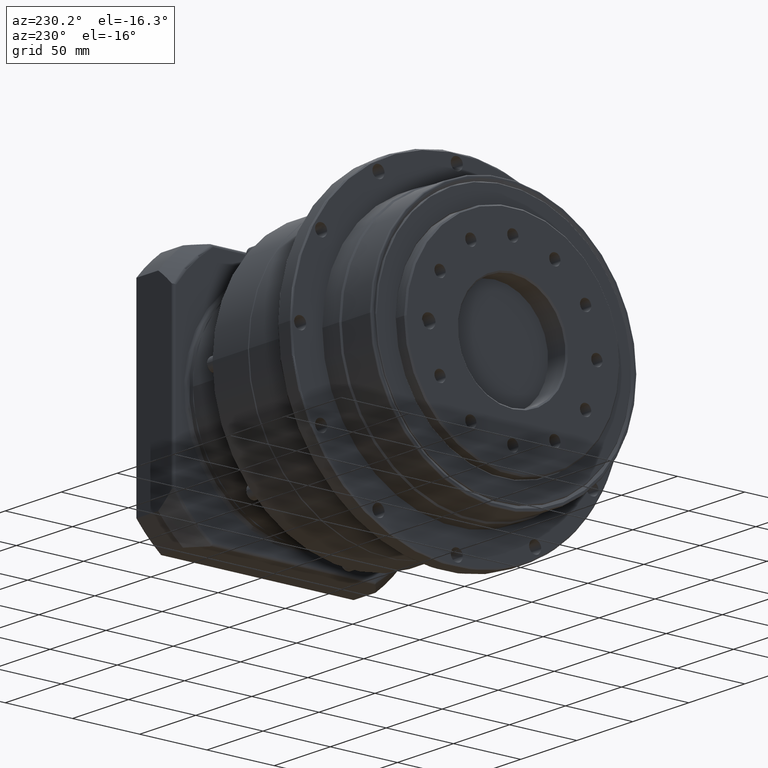
[diagram: clean part render]
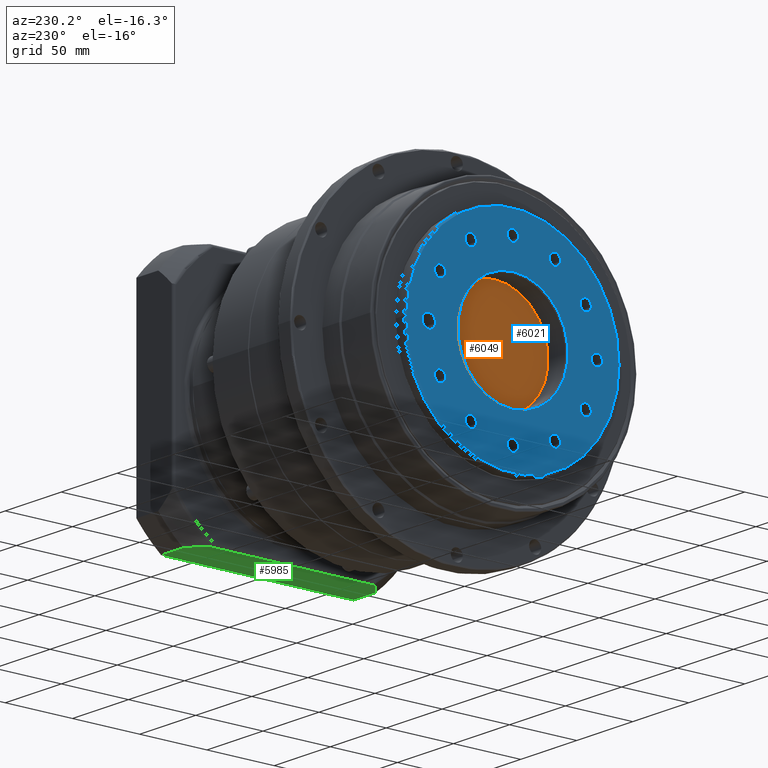
[diagram: same view with three faces highlighted in distinct colors, each labeled with its STEP entity id]
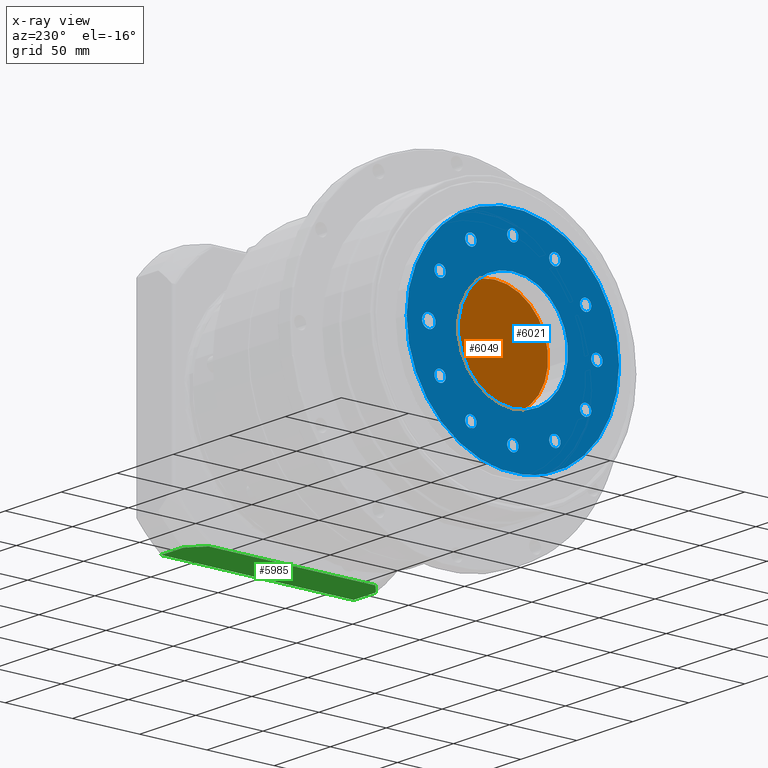
[diagram: x-ray of the same camera — body ghosted, the three highlighted faces saturated]
A machine part, auxiliary view with three faces highlighted in distinct colors.
The next image is the same camera in x-ray (body ghosted, the three faces saturated) — at least one of them is partly hidden behind the body in this view.
Their STEP definitions:

[orange] entity #6049 — the highlighted planar face has unit normal (1, -0, -0).
#1682=FACE_OUTER_BOUND('',#2240,.T.);
#2240=EDGE_LOOP('',(#4930));
#2782=CIRCLE('',#6617,40.);
#3246=VERTEX_POINT('',#9953);
#3880=EDGE_CURVE('',#3246,#3246,#2782,.T.);
#4930=ORIENTED_EDGE('',*,*,#3880,.F.);
#5754=PLANE('',#6654);
#6049=ADVANCED_FACE('',(#1682),#5754,.F.);
#6617=AXIS2_PLACEMENT_3D('',#9954,#7828,#7829);
#6654=AXIS2_PLACEMENT_3D('',#10003,#7902,#7903);
#7828=DIRECTION('center_axis',(1.,-7.70044812467336E-30,-3.24229097250222E-15));
#7829=DIRECTION('ref_axis',(-3.24229097250222E-15,4.46320813919692E-17,
-1.));
#7902=DIRECTION('center_axis',(1.,-7.70044812467336E-30,-3.24229097250222E-15));
#7903=DIRECTION('ref_axis',(-2.8421709430404E-15,0.,-1.));
#9953=CARTESIAN_POINT('',(-95.3353955275979,15.6718015691406,85.4710620589157));
#9954=CARTESIAN_POINT('Origin',(-95.3353955275981,15.6718015691406,45.4710620589157));
#10003=CARTESIAN_POINT('Origin',(-95.3353955275981,15.6718015691406,45.4710620589157));

[blue] entity #6021 — the highlighted planar face has unit normal (-1, 0, 0).
#1294=FACE_BOUND('',#2185,.T.);
#1295=FACE_BOUND('',#2186,.T.);
#1296=FACE_BOUND('',#2187,.T.);
#1297=FACE_BOUND('',#2188,.T.);
#1298=FACE_BOUND('',#2189,.T.);
#1299=FACE_BOUND('',#2190,.T.);
#1300=FACE_BOUND('',#2191,.T.);
#1301=FACE_BOUND('',#2192,.T.);
#1302=FACE_BOUND('',#2193,.T.);
#1303=FACE_BOUND('',#2194,.T.);
#1304=FACE_BOUND('',#2195,.T.);
#1305=FACE_BOUND('',#2196,.T.);
#1306=FACE_BOUND('',#2197,.T.);
#1654=FACE_OUTER_BOUND('',#2184,.T.);
#2184=EDGE_LOOP('',(#4874));
#2185=EDGE_LOOP('',(#4875));
#2186=EDGE_LOOP('',(#4876));
#2187=EDGE_LOOP('',(#4877));
#2188=EDGE_LOOP('',(#4878));
#2189=EDGE_LOOP('',(#4879));
#2190=EDGE_LOOP('',(#4880));
#2191=EDGE_LOOP('',(#4881));
#2192=EDGE_LOOP('',(#4882));
#2193=EDGE_LOOP('',(#4883));
#2194=EDGE_LOOP('',(#4884));
#2195=EDGE_LOOP('',(#4885));
#2196=EDGE_LOOP('',(#4886));
#2197=EDGE_LOOP('',(#4887));
#2766=CIRCLE('',#6597,79.);
#2768=CIRCLE('',#6600,41.);
#2769=CIRCLE('',#6601,4.188);
#2770=CIRCLE('',#6602,4.188);
#2771=CIRCLE('',#6603,4.188);
#2772=CIRCLE('',#6604,4.188);
#2773=CIRCLE('',#6605,4.188);
#2774=CIRCLE('',#6606,4.188);
#2775=CIRCLE('',#6607,4.188);
#2776=CIRCLE('',#6608,4.188);
#2777=CIRCLE('',#6609,4.188);
#2778=CIRCLE('',#6610,4.188);
#2779=CIRCLE('',#6611,4.188);
#2780=CIRCLE('',#6612,5.);
#3230=VERTEX_POINT('',#9917);
#3232=VERTEX_POINT('',#9922);
#3233=VERTEX_POINT('',#9924);
#3234=VERTEX_POINT('',#9926);
#3235=VERTEX_POINT('',#9928);
#3236=VERTEX_POINT('',#9930);
#3237=VERTEX_POINT('',#9932);
#3238=VERTEX_POINT('',#9934);
#3239=VERTEX_POINT('',#9936);
#3240=VERTEX_POINT('',#9938);
#3241=VERTEX_POINT('',#9940);
#3242=VERTEX_POINT('',#9942);
#3243=VERTEX_POINT('',#9944);
#3244=VERTEX_POINT('',#9946);
#3864=EDGE_CURVE('',#3230,#3230,#2766,.T.);
#3866=EDGE_CURVE('',#3232,#3232,#2768,.T.);
#3867=EDGE_CURVE('',#3233,#3233,#2769,.T.);
#3868=EDGE_CURVE('',#3234,#3234,#2770,.T.);
#3869=EDGE_CURVE('',#3235,#3235,#2771,.T.);
#3870=EDGE_CURVE('',#3236,#3236,#2772,.T.);
#3871=EDGE_CURVE('',#3237,#3237,#2773,.T.);
#3872=EDGE_CURVE('',#3238,#3238,#2774,.T.);
#3873=EDGE_CURVE('',#3239,#3239,#2775,.T.);
#3874=EDGE_CURVE('',#3240,#3240,#2776,.T.);
#3875=EDGE_CURVE('',#3241,#3241,#2777,.T.);
#3876=EDGE_CURVE('',#3242,#3242,#2778,.T.);
#3877=EDGE_CURVE('',#3243,#3243,#2779,.T.);
#3878=EDGE_CURVE('',#3244,#3244,#2780,.T.);
#4874=ORIENTED_EDGE('',*,*,#3864,.F.);
#4875=ORIENTED_EDGE('',*,*,#3866,.F.);
#4876=ORIENTED_EDGE('',*,*,#3867,.T.);
#4877=ORIENTED_EDGE('',*,*,#3868,.T.);
#4878=ORIENTED_EDGE('',*,*,#3869,.T.);
#4879=ORIENTED_EDGE('',*,*,#3870,.T.);
#4880=ORIENTED_EDGE('',*,*,#3871,.T.);
#4881=ORIENTED_EDGE('',*,*,#3872,.T.);
#4882=ORIENTED_EDGE('',*,*,#3873,.T.);
#4883=ORIENTED_EDGE('',*,*,#3874,.T.);
#4884=ORIENTED_EDGE('',*,*,#3875,.T.);
#4885=ORIENTED_EDGE('',*,*,#3876,.T.);
#4886=ORIENTED_EDGE('',*,*,#3877,.T.);
#4887=ORIENTED_EDGE('',*,*,#3878,.T.);
#5753=PLANE('',#6599);
#6021=ADVANCED_FACE('',(#1654,#1294,#1295,#1296,#1297,#1298,#1299,#1300,
#1301,#1302,#1303,#1304,#1305,#1306),#5753,.T.);
#6597=AXIS2_PLACEMENT_3D('',#9918,#7788,#7789);
#6599=AXIS2_PLACEMENT_3D('',#9921,#7792,#7793);
#6600=AXIS2_PLACEMENT_3D('',#9923,#7794,#7795);
#6601=AXIS2_PLACEMENT_3D('',#9925,#7796,#7797);
#6602=AXIS2_PLACEMENT_3D('',#9927,#7798,#7799);
#6603=AXIS2_PLACEMENT_3D('',#9929,#7800,#7801);
#6604=AXIS2_PLACEMENT_3D('',#9931,#7802,#7803);
#6605=AXIS2_PLACEMENT_3D('',#9933,#7804,#7805);
#6606=AXIS2_PLACEMENT_3D('',#9935,#7806,#7807);
#6607=AXIS2_PLACEMENT_3D('',#9937,#7808,#7809);
#6608=AXIS2_PLACEMENT_3D('',#9939,#7810,#7811);
#6609=AXIS2_PLACEMENT_3D('',#9941,#7812,#7813);
#6610=AXIS2_PLACEMENT_3D('',#9943,#7814,#7815);
#6611=AXIS2_PLACEMENT_3D('',#9945,#7816,#7817);
#6612=AXIS2_PLACEMENT_3D('',#9947,#7818,#7819);
#7788=DIRECTION('center_axis',(1.,-7.70044812467336E-30,-3.24229097250222E-15));
#7789=DIRECTION('ref_axis',(-7.84515831925452E-30,-1.,-4.46320813919692E-17));
#7792=DIRECTION('center_axis',(-1.,7.70044812467336E-30,3.24229097250222E-15));
#7793=DIRECTION('ref_axis',(2.8421709430404E-15,0.,1.));
#7794=DIRECTION('center_axis',(-1.,7.70044812467336E-30,3.24229097250222E-15));
#7795=DIRECTION('ref_axis',(-3.24229097250222E-15,4.46320813919692E-17,
-1.));
#7796=DIRECTION('center_axis',(1.,-7.70044812467336E-30,-3.24229097250222E-15));
#7797=DIRECTION('ref_axis',(3.24229097250222E-15,-4.46320813919692E-17,
1.));
#7798=DIRECTION('center_axis',(1.,-7.70044812467336E-30,-3.24229097250222E-15));
#7799=DIRECTION('ref_axis',(3.24229097250222E-15,-4.46320813919692E-17,
1.));
#7800=DIRECTION('center_axis',(1.,-7.70044812467336E-30,-3.24229097250222E-15));
#7801=DIRECTION('ref_axis',(3.24229097250222E-15,-4.46320813919692E-17,
1.));
#7802=DIRECTION('center_axis',(1.,-7.70044812467336E-30,-3.24229097250222E-15));
#7803=DIRECTION('ref_axis',(3.24229097250222E-15,-4.46320813919692E-17,
1.));
#7804=DIRECTION('center_axis',(1.,-7.70044812467336E-30,-3.24229097250222E-15));
#7805=DIRECTION('ref_axis',(3.24229097250222E-15,-4.46320813919692E-17,
1.));
#7806=DIRECTION('center_axis',(1.,-7.70044812467336E-30,-3.24229097250222E-15));
#7807=DIRECTION('ref_axis',(3.24229097250222E-15,-4.46320813919692E-17,
1.));
#7808=DIRECTION('center_axis',(1.,-7.70044812467336E-30,-3.24229097250222E-15));
#7809=DIRECTION('ref_axis',(3.24229097250222E-15,-4.46320813919692E-17,
1.));
#7810=DIRECTION('center_axis',(1.,-7.70044812467336E-30,-3.24229097250222E-15));
#7811=DIRECTION('ref_axis',(3.24229097250222E-15,-4.46320813919692E-17,
1.));
#7812=DIRECTION('center_axis',(1.,-7.70044812467336E-30,-3.24229097250222E-15));
#7813=DIRECTION('ref_axis',(3.24229097250222E-15,-4.46320813919692E-17,
1.));
#7814=DIRECTION('center_axis',(1.,-7.70044812467336E-30,-3.24229097250222E-15));
#7815=DIRECTION('ref_axis',(3.24229097250222E-15,-4.46320813919692E-17,
1.));
#7816=DIRECTION('center_axis',(1.,-7.70044812467336E-30,-3.24229097250222E-15));
#7817=DIRECTION('ref_axis',(3.24229097250222E-15,-4.46320813919692E-17,
1.));
#7818=DIRECTION('center_axis',(1.,-7.70044812467336E-30,-3.24229097250222E-15));
#7819=DIRECTION('ref_axis',(3.24229097250222E-15,-4.46320813919692E-17,
1.));
#9917=CARTESIAN_POINT('',(-111.835395527598,94.6718015691406,45.4710620589158));
#9918=CARTESIAN_POINT('Origin',(-111.835395527598,15.6718015691406,45.4710620589157));
#9921=CARTESIAN_POINT('Origin',(-111.835395527598,95.6718015691406,45.4710620589157));
#9922=CARTESIAN_POINT('',(-111.835395527598,15.6718015691406,86.4710620589157));
#9923=CARTESIAN_POINT('Origin',(-111.835395527598,15.6718015691406,45.4710620589157));
#9924=CARTESIAN_POINT('',(-111.835395527598,46.9218015691406,103.785649795443));
#9925=CARTESIAN_POINT('Origin',(-111.835395527598,46.9218015691406,99.5976497954431));
#9926=CARTESIAN_POINT('',(-111.835395527598,-15.5781984308593,103.785649795443));
#9927=CARTESIAN_POINT('Origin',(-111.835395527598,-15.5781984308593,99.5976497954432));
#9928=CARTESIAN_POINT('',(-111.835395527598,-46.8281984308594,49.6590620589157));
#9929=CARTESIAN_POINT('Origin',(-111.835395527598,-46.8281984308594,45.4710620589157));
#9930=CARTESIAN_POINT('',(-111.835395527598,-15.5781984308594,-4.46752567761165));
#9931=CARTESIAN_POINT('Origin',(-111.835395527598,-15.5781984308594,-8.65552567761165));
#9932=CARTESIAN_POINT('',(-111.835395527598,46.9218015691406,-4.46752567761167));
#9933=CARTESIAN_POINT('Origin',(-111.835395527598,46.9218015691406,-8.65552567761167));
#9934=CARTESIAN_POINT('',(-111.835395527598,69.798389305668,18.4090620589157));
#9935=CARTESIAN_POINT('Origin',(-111.835395527598,69.798389305668,14.2210620589157));
#9936=CARTESIAN_POINT('',(-111.835395527598,15.6718015691406,-12.8409379410842));
#9937=CARTESIAN_POINT('Origin',(-111.835395527598,15.6718015691406,-17.0289379410842));
#9938=CARTESIAN_POINT('',(-111.835395527598,-38.4547861673868,18.4090620589158));
#9939=CARTESIAN_POINT('Origin',(-111.835395527598,-38.4547861673868,14.2210620589158));
#9940=CARTESIAN_POINT('',(-111.835395527598,-38.4547861673868,80.9090620589158));
#9941=CARTESIAN_POINT('Origin',(-111.835395527598,-38.4547861673868,76.7210620589158));
#9942=CARTESIAN_POINT('',(-111.835395527598,15.6718015691406,112.159062058916));
#9943=CARTESIAN_POINT('Origin',(-111.835395527598,15.6718015691406,107.971062058916));
#9944=CARTESIAN_POINT('',(-111.835395527598,69.7983893056681,80.9090620589157));
#9945=CARTESIAN_POINT('Origin',(-111.835395527598,69.7983893056681,76.7210620589157));
#9946=CARTESIAN_POINT('',(-111.835395527598,78.1718015691406,50.4710620589157));
#9947=CARTESIAN_POINT('Origin',(-111.835395527598,78.1718015691406,45.4710620589157));

[green] entity #5985 — the highlighted planar face has unit normal (-0, -0, -1).
#285=LINE('',#9537,#528);
#300=LINE('',#9753,#543);
#302=LINE('',#9796,#545);
#303=LINE('',#9799,#546);
#528=VECTOR('',#7578,143.178210632764);
#543=VECTOR('',#7651,123.401782807219);
#545=VECTOR('',#7669,19.4878626474241);
#546=VECTOR('',#7672,19.4878626474241);
#1618=FACE_OUTER_BOUND('',#2121,.T.);
#2121=EDGE_LOOP('',(#4778,#4779,#4780,#4781,#4782,#4783));
#2741=CIRCLE('',#6536,88.1816307401944);
#2743=CIRCLE('',#6539,88.1816307401944);
#3173=VERTEX_POINT('',#9525);
#3174=VERTEX_POINT('',#9532);
#3203=VERTEX_POINT('',#9751);
#3204=VERTEX_POINT('',#9752);
#3207=VERTEX_POINT('',#9792);
#3208=VERTEX_POINT('',#9797);
#3783=EDGE_CURVE('',#3174,#3173,#285,.T.);
#3828=EDGE_CURVE('',#3203,#3204,#300,.T.);
#3835=EDGE_CURVE('',#3207,#3204,#2741,.T.);
#3837=EDGE_CURVE('',#3174,#3207,#302,.T.);
#3838=EDGE_CURVE('',#3203,#3208,#2743,.T.);
#3839=EDGE_CURVE('',#3208,#3173,#303,.T.);
#4778=ORIENTED_EDGE('',*,*,#3783,.F.);
#4779=ORIENTED_EDGE('',*,*,#3837,.T.);
#4780=ORIENTED_EDGE('',*,*,#3835,.T.);
#4781=ORIENTED_EDGE('',*,*,#3828,.F.);
#4782=ORIENTED_EDGE('',*,*,#3838,.T.);
#4783=ORIENTED_EDGE('',*,*,#3839,.T.);
#5742=PLANE('',#6538);
#5985=ADVANCED_FACE('',(#1618),#5742,.T.);
#6536=AXIS2_PLACEMENT_3D('',#9793,#7663,#7664);
#6538=AXIS2_PLACEMENT_3D('',#9795,#7667,#7668);
#6539=AXIS2_PLACEMENT_3D('',#9798,#7670,#7671);
#7578=DIRECTION('',(2.2105299668796E-16,1.,-2.77555756156287E-15));
#7651=DIRECTION('',(-2.2105299668796E-16,-1.,2.77555756156287E-15));
#7663=DIRECTION('center_axis',(-1.32434103674276E-15,-2.77555756156287E-15,
-1.));
#7664=DIRECTION('ref_axis',(-2.2105299668796E-16,-1.,2.77555756156287E-15));
#7667=DIRECTION('center_axis',(-1.32434103674276E-15,-2.77555756156287E-15,
-1.));
#7668=DIRECTION('ref_axis',(0.,-1.,2.8421709430404E-15));
#7669=DIRECTION('',(-1.,2.21052996687963E-16,1.32434103674276E-15));
#7670=DIRECTION('center_axis',(-1.32434103674276E-15,-2.77555756156287E-15,
-1.));
#7671=DIRECTION('ref_axis',(-2.2105299668796E-16,-1.,2.77555756156287E-15));
#7672=DIRECTION('',(1.,-2.21052996687963E-16,-1.32434103674276E-15));
#9525=CARTESIAN_POINT('',(116.164604472402,87.2609068855217,-44.5289379410849));
#9532=CARTESIAN_POINT('',(116.164604472402,-55.9173037472418,-44.5289379410845));
#9537=CARTESIAN_POINT('',(116.164604472402,60.67180156914,-44.5289379410848));
#9751=CARTESIAN_POINT('',(85.1646044724019,77.3726929727494,-44.5289379410848));
#9752=CARTESIAN_POINT('',(85.1646044724019,-46.0290898344695,-44.5289379410845));
#9753=CARTESIAN_POINT('',(85.1646044724019,60.67180156914,-44.5289379410848));
#9792=CARTESIAN_POINT('',(96.6767418249779,-55.9173037472418,-44.5289379410844));
#9793=CARTESIAN_POINT('Origin',(148.164604472402,15.6718015691399,-44.5289379410847));
#9795=CARTESIAN_POINT('Origin',(118.164604472402,105.67180156914,-44.5289379410849));
#9796=CARTESIAN_POINT('',(118.164604472402,-55.9173037472418,-44.5289379410845));
#9797=CARTESIAN_POINT('',(96.6767418249779,87.2609068855217,-44.5289379410848));
#9798=CARTESIAN_POINT('Origin',(148.164604472402,15.6718015691399,-44.5289379410847));
#9799=CARTESIAN_POINT('',(118.164604472402,87.2609068855217,-44.5289379410849));